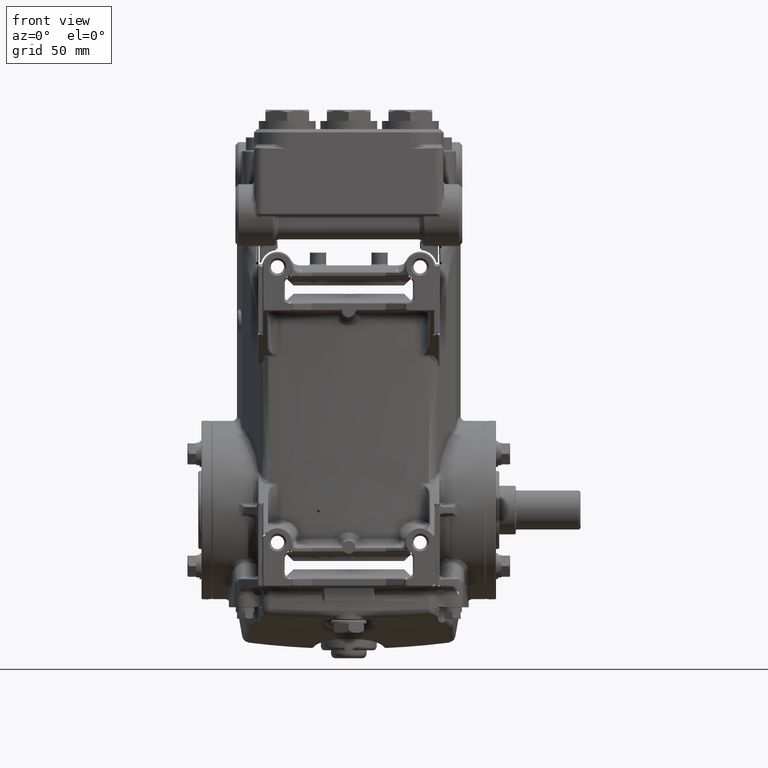
[diagram: clean part render]
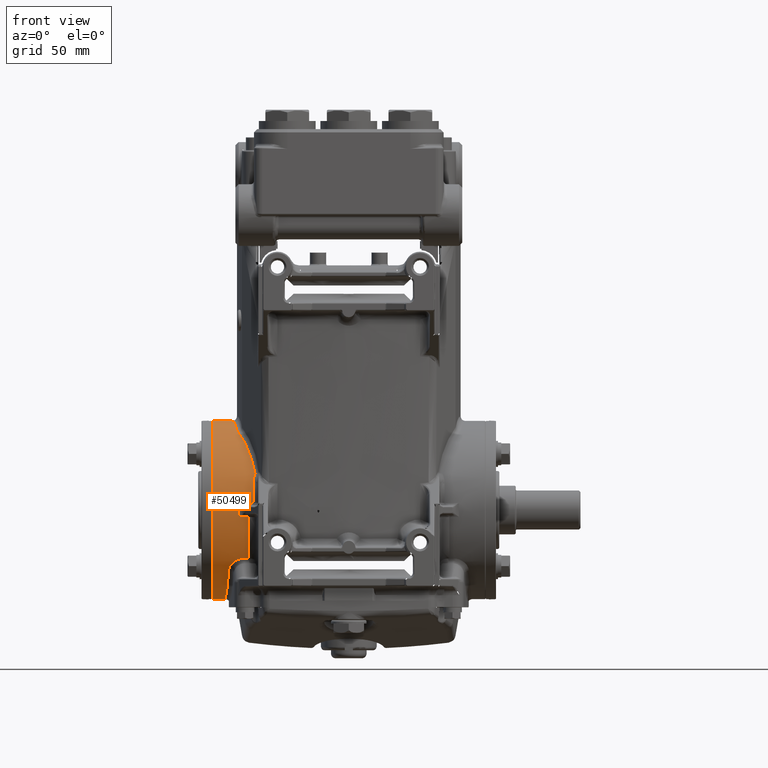
[diagram: same view with one face highlighted and labeled with its STEP entity id]
A machine part, front view. The second image highlights one B-rep face of the part: STEP entity #50499.
In plain terms, the highlighted cylindrical surface (partial cylindrical patch) has radius 55 mm, axis along (-1, -0, -0).
Its self-contained STEP definition (entity closure, byte-faithful):
#1895 = CARTESIAN_POINT ( 'NONE',  ( -2.940181541919657082, -1.309273501592580713, -1.772590252395337407 ) ) ;
#2230 = ORIENTED_EDGE ( 'NONE', *, *, #103115, .T. ) ;
#2510 = CARTESIAN_POINT ( 'NONE',  ( -2.964687734594000812, -0.9588978268965991925, -1.984134134183584752 ) ) ;
#3326 = B_SPLINE_CURVE_WITH_KNOTS ( 'NONE', 3,
 ( #4194, #119165, #42571, #33114, #14859, #23677, #100353, #14246 ),
 .UNSPECIFIED., .F., .F.,
 ( 4, 2, 2, 4 ),
 ( 0.000000000000000000, 0.003403388536728656991, 0.005105082805092990041, 0.006806777073457322656 ),
 .UNSPECIFIED. ) ;
#3419 = CARTESIAN_POINT ( 'NONE',  ( -2.920714650841377047, -1.587600093807529200, -1.472509870819574518 ) ) ;
#4194 = CARTESIAN_POINT ( 'NONE',  ( -2.326855772008549206, -2.067566859146158009, 0.6433713239485003843 ) ) ;
#4655 = CARTESIAN_POINT ( 'NONE',  ( -2.532464889193351887, -1.820616516430447085, -1.172226461746798343 ) ) ;
#5289 = CARTESIAN_POINT ( 'NONE',  ( -2.764593331846600499, -1.776188150977242364, -1.238591916241818414 ) ) ;
#8217 = EDGE_CURVE ( 'NONE', #79322, #58122, #20996, .T. ) ;
#11020 = CARTESIAN_POINT ( 'NONE',  ( -2.326187179854042775, -2.158380598365251757, 0.1736449542002639901 ) ) ;
#11124 = VERTEX_POINT ( 'NONE', #22232 ) ;
#11272 = CARTESIAN_POINT ( 'NONE',  ( -2.446093692784791163, -1.820616516430446863, -1.172226461746799675 ) ) ;
#11655 = CARTESIAN_POINT ( 'NONE',  ( -2.326855772008549206, -2.067566859146158009, 0.6433713239485003843 ) ) ;
#12083 = B_SPLINE_CURVE_WITH_KNOTS ( 'NONE', 3,
 ( #71238, #62452, #110156, #24084 ),
 .UNSPECIFIED., .F., .F.,
 ( 4, 4 ),
 ( 0.0002660209736205815679, 0.0005320419472383840004 ),
 .UNSPECIFIED. ) ;
#12133 = CARTESIAN_POINT ( 'NONE',  ( -2.996615589479275865, -0.4731062516763478998, -2.113551596670203203 ) ) ;
#13098 = CARTESIAN_POINT ( 'NONE',  ( -2.834916132250326903, -8.553836053367910872E-13, 2.165354330708661568 ) ) ;
#13981 = CARTESIAN_POINT ( 'NONE',  ( -2.995192722002653962, -0.1972203405201245763, -2.156859757434875569 ) ) ;
#14246 = CARTESIAN_POINT ( 'NONE',  ( -2.278432660045424551, -1.974119970560272774, 0.8897245187999839322 ) ) ;
#14859 = CARTESIAN_POINT ( 'NONE',  ( -2.305625944778945779, -2.008007654725290525, 0.8106383334093402171 ) ) ;
#14873 = CARTESIAN_POINT ( 'NONE',  ( -2.699836573358002312, -1.036775677710987109, 1.901014353345518382 ) ) ;
#15040 = CARTESIAN_POINT ( 'NONE',  ( -2.714262431508347007, -0.9853388122601135501, 1.928177067225047114 ) ) ;
#15889 = CARTESIAN_POINT ( 'NONE',  ( -2.833573044147181808, -0.02176847656630575764, 2.165244907844546596 ) ) ;
#16103 = CARTESIAN_POINT ( 'NONE',  ( -2.366389167053205789, -1.778475062528224626, 1.323821266639738203 ) ) ;
#16264 = CARTESIAN_POINT ( 'NONE',  ( -2.712053289720472993, -1.003180171440652746, 1.919059759503226381 ) ) ;
#16776 = CARTESIAN_POINT ( 'NONE',  ( -2.674210746901584557, -2.158770751971642810, 0.1687252735974759943 ) ) ;
#17435 = ORIENTED_EDGE ( 'NONE', *, *, #79223, .T. ) ;
#17516 = ORIENTED_EDGE ( 'NONE', *, *, #8217, .T. ) ;
#18652 = EDGE_CURVE ( 'NONE', #107492, #98398, #119952, .T. ) ;
#20079 = DIRECTION ( 'NONE',  ( -1.000000000000000000, -0.000000000000000000, -0.000000000000000000 ) ) ;
#20166 = CARTESIAN_POINT ( 'NONE',  ( 19685.03937007874265, 0.000000000000000000, 0.000000000000000000 ) ) ;
#20352 =( BOUNDED_CURVE ( )  B_SPLINE_CURVE ( 3, ( #29110, #38550, #20906, #115799 ),
 .UNSPECIFIED., .F., .T. ) 
 B_SPLINE_CURVE_WITH_KNOTS ( ( 4, 4 ),
 ( 3.063593188191957140, 3.219592118987629092 ),
 .UNSPECIFIED. ) 
 CURVE ( )  GEOMETRIC_REPRESENTATION_ITEM ( )  RATIONAL_B_SPLINE_CURVE ( ( 1.000000000000000000, 0.9979730557585420048, 0.9979730557585420048, 1.000000000000000000 ) ) 
 REPRESENTATION_ITEM ( '' )  );
#20906 = CARTESIAN_POINT ( 'NONE',  ( -2.667988787723269084, -2.167553314171200451, 0.05635598831180540363 ) ) ;
#20996 =( BOUNDED_CURVE ( )  B_SPLINE_CURVE ( 3, ( #88635, #2510, #1895, #31443 ),
 .UNSPECIFIED., .F., .T. ) 
 B_SPLINE_CURVE_WITH_KNOTS ( ( 4, 4 ),
 ( 1.834169742911779588, 2.393786604627855308 ),
 .UNSPECIFIED. ) 
 CURVE ( )  GEOMETRIC_REPRESENTATION_ITEM ( )  RATIONAL_B_SPLINE_CURVE ( ( 1.000000000000000000, 0.9740722412601059421, 0.9740722412601059421, 1.000000000000000000 ) ) 
 REPRESENTATION_ITEM ( '' )  );
#22167 = CARTESIAN_POINT ( 'NONE',  ( -2.995487386928062712, -0.5185418274592429322, -2.102870380195392297 ) ) ;
#22232 = CARTESIAN_POINT ( 'NONE',  ( -2.443477343751564668, -2.158513348630655138, -0.1719869218924234555 ) ) ;
#22289 = CARTESIAN_POINT ( 'NONE',  ( -2.655372862777617637, -1.809646276478333426, -1.189132284502953496 ) ) ;
#22922 = CARTESIAN_POINT ( 'NONE',  ( -2.326187179854042775, -2.158380598365251757, 0.1736449542002639901 ) ) ;
#23304 = VERTEX_POINT ( 'NONE', #44302 ) ;
#23677 = CARTESIAN_POINT ( 'NONE',  ( -2.293715712510576044, -1.991376897123604550, 0.8506746161902936088 ) ) ;
#23856 = ORIENTED_EDGE ( 'NONE', *, *, #30233, .T. ) ;
#24031 = CARTESIAN_POINT ( 'NONE',  ( -3.000905191768266533, -0.01046765692728695782, -2.165329029426523277 ) ) ;
#24084 = CARTESIAN_POINT ( 'NONE',  ( -3.000905191768266533, -0.01046765692728695782, -2.165329029426523277 ) ) ;
#24272 = CARTESIAN_POINT ( 'NONE',  ( -2.714262431508347007, -0.9853388122601135501, 1.928177067225047114 ) ) ;
#25688 = LINE ( 'NONE', #64669, #87694 ) ;
#28211 = ORIENTED_EDGE ( 'NONE', *, *, #99675, .F. ) ;
#29084 = CARTESIAN_POINT ( 'NONE',  ( -2.791879429211051811, -0.3584923408687981095, 2.161859625411682639 ) ) ;
#29110 = CARTESIAN_POINT ( 'NONE',  ( -2.674210746901584557, -2.158770751971642810, -0.1687252735974765216 ) ) ;
#29112 =( BOUNDED_CURVE ( )  B_SPLINE_CURVE ( 3, ( #16776, #101050, #84056, #33832 ),
 .UNSPECIFIED., .F., .T. ) 
 B_SPLINE_CURVE_WITH_KNOTS ( ( 4, 4 ),
 ( 1.658302215529230184, 1.660581347333502267 ),
 .UNSPECIFIED. ) 
 CURVE ( )  GEOMETRIC_REPRESENTATION_ITEM ( )  RATIONAL_B_SPLINE_CURVE ( ( 1.000000000000000000, 0.9999995671298984590, 0.9999995671298984590, 1.000000000000000000 ) ) 
 REPRESENTATION_ITEM ( '' )  );
#30214 = LINE ( 'NONE', #115661, #90484 ) ;
#30233 = EDGE_CURVE ( 'NONE', #90488, #79322, #96168, .T. ) ;
#30452 = ORIENTED_EDGE ( 'NONE', *, *, #104515, .T. ) ;
#30512 = EDGE_CURVE ( 'NONE', #71953, #78714, #30214, .T. ) ;
#31443 = CARTESIAN_POINT ( 'NONE',  ( -2.920714650841377047, -1.587600093807529200, -1.472509870819574518 ) ) ;
#31737 = CARTESIAN_POINT ( 'NONE',  ( -2.863461055552833034, -1.710153006619635985, -1.328365225891262824 ) ) ;
#32112 = DIRECTION ( 'NONE',  ( -1.000000000000000000, -0.000000000000000000, -0.000000000000000000 ) ) ;
#32235 = CARTESIAN_POINT ( 'NONE',  ( -2.992327056910538907, -0.5637264376050655779, -2.090686939994570004 ) ) ;
#32359 = CARTESIAN_POINT ( 'NONE',  ( -2.723179048461198182, -1.791718851132846568, -1.215951984362869442 ) ) ;
#33114 = CARTESIAN_POINT ( 'NONE',  ( -2.310552848791296299, -2.016081156303713762, 0.7903537873505217526 ) ) ;
#33134 = CARTESIAN_POINT ( 'NONE',  ( -2.511905838885127640, -1.454796953362464063, 1.673033806750391150 ) ) ;
#33473 = CARTESIAN_POINT ( 'NONE',  ( -2.996620088869631715, -0.3358538298913016917, -2.139656249712680758 ) ) ;
#33832 = CARTESIAN_POINT ( 'NONE',  ( -2.326187179854042775, -2.158380598365251757, 0.1736449542002639901 ) ) ;
#34444 = CARTESIAN_POINT ( 'NONE',  ( -2.446093692784791163, -1.820616516430446863, -1.172226461746799675 ) ) ;
#37491 = ORIENTED_EDGE ( 'NONE', *, *, #122128, .T. ) ;
#38550 = CARTESIAN_POINT ( 'NONE',  ( -2.667988787723269084, -2.167553314171200451, -0.05635598831180592405 ) ) ;
#40186 = CARTESIAN_POINT ( 'NONE',  ( -2.834471511779841357, -0.01451231771115563292, 2.165317858263883899 ) ) ;
#40227 = CARTESIAN_POINT ( 'NONE',  ( -2.443698221112212465, -2.129987429680291200, -0.5300000554423744958 ) ) ;
#41460 = ORIENTED_EDGE ( 'NONE', *, *, #65007, .T. ) ;
#41822 = CARTESIAN_POINT ( 'NONE',  ( -2.818805374646163209, -1.746130270266147644, -1.280578324590665895 ) ) ;
#42571 = CARTESIAN_POINT ( 'NONE',  ( -2.322550062479203259, -2.039519848676857094, 0.7287317793437902980 ) ) ;
#42922 = CARTESIAN_POINT ( 'NONE',  ( -2.995616580941063756, -0.2435827851895654428, -2.152113865190802056 ) ) ;
#43378 = CARTESIAN_POINT ( 'NONE',  ( -2.707236426691661535, -1.020315910558583949, 1.909991185221791676 ) ) ;
#44302 = CARTESIAN_POINT ( 'NONE',  ( -2.674210746901584557, -2.158770751971642810, -0.1687252735974765216 ) ) ;
#45307 =( BOUNDED_CURVE ( )  B_SPLINE_CURVE ( 3, ( #85681, #95714, #29084, #105125 ),
 .UNSPECIFIED., .F., .T. ) 
 B_SPLINE_CURVE_WITH_KNOTS ( ( 4, 4 ),
 ( 4.239963560357498551, 4.702335732773507360 ),
 .UNSPECIFIED. ) 
 CURVE ( )  GEOMETRIC_REPRESENTATION_ITEM ( )  RATIONAL_B_SPLINE_CURVE ( ( 1.000000000000000000, 0.9822635394635153006, 0.9822635394635153006, 1.000000000000000000 ) ) 
 REPRESENTATION_ITEM ( '' )  );
#46196 = ORIENTED_EDGE ( 'NONE', *, *, #116280, .T. ) ;
#46990 = CARTESIAN_POINT ( 'NONE',  ( -3.307086614166640182, 2.651794250122221246E-16, 2.165354330708661568 ) ) ;
#49089 = ORIENTED_EDGE ( 'NONE', *, *, #89967, .T. ) ;
#49399 = CARTESIAN_POINT ( 'NONE',  ( -2.326505496007025720, -2.115144254841320404, 0.4904744774119016992 ) ) ;
#49614 = CARTESIAN_POINT ( 'NONE',  ( -2.833573044147181808, -0.02176847656630575764, 2.165244907844546596 ) ) ;
#50366 = CYLINDRICAL_SURFACE ( 'NONE', #109372, 2.165354330708661568 ) ;
#50499 = ADVANCED_FACE ( 'NONE', ( #88044 ), #50366, .T. ) ;
#51877 = ORIENTED_EDGE ( 'NONE', *, *, #94184, .T. ) ;
#52287 =( BOUNDED_CURVE ( )  B_SPLINE_CURVE ( 3, ( #11272, #116822, #40227, #60936 ),
 .UNSPECIFIED., .F., .T. ) 
 B_SPLINE_CURVE_WITH_KNOTS ( ( 4, 4 ),
 ( 2.569544220419070601, 3.062082216201972074 ),
 .UNSPECIFIED. ) 
 CURVE ( )  GEOMETRIC_REPRESENTATION_ITEM ( )  RATIONAL_B_SPLINE_CURVE ( ( 1.000000000000000000, 0.9798858269717181102, 0.9798858269717181102, 1.000000000000000000 ) ) 
 REPRESENTATION_ITEM ( '' )  );
#52475 = CARTESIAN_POINT ( 'NONE',  ( -2.919517072216844866, -1.604722395266136026, -1.454049303633869306 ) ) ;
#53084 = CARTESIAN_POINT ( 'NONE',  ( -2.701190563339463058, -1.798456944965630688, -1.205963634147353858 ) ) ;
#53141 = VERTEX_POINT ( 'NONE', #24272 ) ;
#53714 = CARTESIAN_POINT ( 'NONE',  ( -2.842331129812760704, -1.728738325294228773, -1.303966144364913538 ) ) ;
#54901 = CARTESIAN_POINT ( 'NONE',  ( -2.699836573358002312, -1.036775677710987109, 1.901014353345518382 ) ) ;
#55255 = ORIENTED_EDGE ( 'NONE', *, *, #86116, .T. ) ;
#55726 = DIRECTION ( 'NONE',  ( 1.000000000000000000, -0.000000000000000000, -0.000000000000000000 ) ) ;
#58122 = VERTEX_POINT ( 'NONE', #112794 ) ;
#58536 = DIRECTION ( 'NONE',  ( 0.000000000000000000, 0.000000000000000000, 1.000000000000000000 ) ) ;
#59443 = CARTESIAN_POINT ( 'NONE',  ( -2.326281718821082478, -2.145539530712824661, 0.3332574889320795153 ) ) ;
#59697 = LINE ( 'NONE', #96746, #66176 ) ;
#60936 = CARTESIAN_POINT ( 'NONE',  ( -2.443477343751564668, -2.158513348630655138, -0.1719869218924234555 ) ) ;
#61137 =( BOUNDED_CURVE ( )  B_SPLINE_CURVE ( 3, ( #11020, #59443, #49399, #11655 ),
 .UNSPECIFIED., .F., .F. ) 
 B_SPLINE_CURVE_WITH_KNOTS ( ( 4, 4 ),
 ( 3.221871250791901176, 3.443268276821734641 ),
 .UNSPECIFIED. ) 
 CURVE ( )  GEOMETRIC_REPRESENTATION_ITEM ( )  RATIONAL_B_SPLINE_CURVE ( ( 1.000000000000000000, 0.9959194492702052592, 0.9959194492702052592, 1.000000000000000000 ) ) 
 REPRESENTATION_ITEM ( '' )  );
#61280 = CARTESIAN_POINT ( 'NONE',  ( -2.582927355988585472, -1.819201374929799941, -1.174432289810004804 ) ) ;
#62452 = CARTESIAN_POINT ( 'NONE',  ( -3.001247000493424633, -0.003491088892676858478, -2.165354330708661568 ) ) ;
#62516 = CARTESIAN_POINT ( 'NONE',  ( -2.895681110343640174, -1.667722611924739473, -1.381158956029594709 ) ) ;
#62619 = VERTEX_POINT ( 'NONE', #77680 ) ;
#64669 = CARTESIAN_POINT ( 'NONE',  ( 19685.03937007874265, 2.651794250122221246E-16, -2.165354330708661568 ) ) ;
#64767 = ORIENTED_EDGE ( 'NONE', *, *, #18652, .T. ) ;
#65007 = EDGE_CURVE ( 'NONE', #70559, #62619, #122346, .T. ) ;
#65480 = CARTESIAN_POINT ( 'NONE',  ( -2.278432660045424551, -1.974119970560272774, 0.8897245187999839322 ) ) ;
#66176 = VECTOR ( 'NONE', #20079, 39.37007874015748143 ) ;
#69958 = CARTESIAN_POINT ( 'NONE',  ( -2.997849561794700524, -0.05720719989911275671, -2.165103080624237286 ) ) ;
#70086 = CARTESIAN_POINT ( 'NONE',  ( -2.834814056127188397, -1.734692835715669013, -1.296029525847214536 ) ) ;
#70559 = VERTEX_POINT ( 'NONE', #15889 ) ;
#70699 = CARTESIAN_POINT ( 'NONE',  ( -2.631702669547606899, -1.813707328637965688, -1.182899223069887373 ) ) ;
#70938 = CARTESIAN_POINT ( 'NONE',  ( -2.992327056910538907, -0.5637264376050655779, -2.090686939994570004 ) ) ;
#71238 = CARTESIAN_POINT ( 'NONE',  ( -3.001247000493425965, -5.474055705097304527E-14, -2.165354330708661568 ) ) ;
#71953 = VERTEX_POINT ( 'NONE', #97099 ) ;
#72551 = CARTESIAN_POINT ( 'NONE',  ( -2.907208096817309961, -1.644827329761225254, -1.408349340068536515 ) ) ;
#73094 = CARTESIAN_POINT ( 'NONE',  ( -3.307086614166640182, 0.000000000000000000, -2.165354330708661568 ) ) ;
#73211 = B_SPLINE_CURVE_WITH_KNOTS ( 'NONE', 3,
 ( #3419, #52475, #109603, #72551, #110842, #62516, #82583, #101442, #31737, #53714, #70086, #41822, #91390, #100827, #5289, #80122, #32359, #53084, #108380, #22289, #70699, #61280, #120275, #4655 ),
 .UNSPECIFIED., .F., .F.,
 ( 4, 2, 2, 2, 2, 2, 2, 2, 2, 2, 2, 4 ),
 ( 9.813077866773594792E-18, 0.001890309514353979503, 0.002835464271530962425, 0.003780619028707945996, 0.005670928543061879747, 0.006616083300238845971, 0.007561238057415810461, 0.009451547571769722961, 0.01039670232894667617, 0.01134185708612362765, 0.01323216660047752888, 0.01512247611483142837 ),
 .UNSPECIFIED. ) ;
#73333 = CARTESIAN_POINT ( 'NONE',  ( -2.278432660045424551, -1.974119970560272774, 0.8897245187999839322 ) ) ;
#75639 = CARTESIAN_POINT ( 'NONE',  ( -2.597294478023087549, -2.158685772242758816, -0.1698125544138842091 ) ) ;
#75816 = DIRECTION ( 'NONE',  ( 0.000000000000000000, 0.000000000000000000, -1.000000000000000000 ) ) ;
#76873 = CARTESIAN_POINT ( 'NONE',  ( -2.520383329007171547, -2.158599971112772575, -0.1708997707190461901 ) ) ;
#77680 = CARTESIAN_POINT ( 'NONE',  ( -2.834916132250326903, -8.553836053367910872E-13, 2.165354330708661568 ) ) ;
#78714 = VERTEX_POINT ( 'NONE', #34444 ) ;
#79223 = EDGE_CURVE ( 'NONE', #88779, #90488, #12083, .T. ) ;
#79322 = VERTEX_POINT ( 'NONE', #70938 ) ;
#79566 = VERTEX_POINT ( 'NONE', #46990 ) ;
#80122 = CARTESIAN_POINT ( 'NONE',  ( -2.733799821002130592, -1.788055399720631655, -1.221337787564105160 ) ) ;
#82066 = VERTEX_POINT ( 'NONE', #83842 ) ;
#82583 = CARTESIAN_POINT ( 'NONE',  ( -2.891058420429804432, -1.675185755806329446, -1.372094427274260786 ) ) ;
#83842 = CARTESIAN_POINT ( 'NONE',  ( -2.674210746901584557, -2.158770751971642810, 0.1687252735974759943 ) ) ;
#83873 = EDGE_LOOP ( 'NONE', ( #28211, #17435, #23856, #17516, #98868, #87134, #55255, #100548, #37491, #51877, #110431, #30452, #64767, #46196, #49089, #41460, #2230, #115518 ) ) ;
#84056 = CARTESIAN_POINT ( 'NONE',  ( -2.442183260828809210, -2.158512518306397343, 0.1720052092228487040 ) ) ;
#85225 = CARTESIAN_POINT ( 'NONE',  ( -3.307086614166640182, 0.000000000000000000, 0.000000000000000000 ) ) ;
#85681 = CARTESIAN_POINT ( 'NONE',  ( -2.714262431508347007, -0.9853388122601135501, 1.928177067225047114 ) ) ;
#86116 = EDGE_CURVE ( 'NONE', #78714, #11124, #52287, .T. ) ;
#87134 = ORIENTED_EDGE ( 'NONE', *, *, #30512, .T. ) ;
#87327 = CARTESIAN_POINT ( 'NONE',  ( -2.326855772008549206, -2.067566859146158009, 0.6433713239485003843 ) ) ;
#87694 = VECTOR ( 'NONE', #102969, 39.37007874015748143 ) ;
#88044 = FACE_OUTER_BOUND ( 'NONE', #83873, .T. ) ;
#88635 = CARTESIAN_POINT ( 'NONE',  ( -2.992327056910538907, -0.5637264376050655779, -2.090686939994570004 ) ) ;
#88779 = VERTEX_POINT ( 'NONE', #115392 ) ;
#89967 = EDGE_CURVE ( 'NONE', #53141, #70559, #45307, .T. ) ;
#90484 = VECTOR ( 'NONE', #106859, 39.37007874015748143 ) ;
#90488 = VERTEX_POINT ( 'NONE', #111776 ) ;
#90786 = EDGE_CURVE ( 'NONE', #79566, #101286, #96095, .T. ) ;
#91390 = CARTESIAN_POINT ( 'NONE',  ( -2.810273067879314191, -1.751632638508452633, -1.273035907037324721 ) ) ;
#94184 = EDGE_CURVE ( 'NONE', #82066, #99983, #29112, .T. ) ;
#95055 = B_SPLINE_CURVE_WITH_KNOTS ( 'NONE', 3,
 ( #101135, #43378, #16264, #15040 ),
 .UNSPECIFIED., .F., .F.,
 ( 4, 4 ),
 ( 0.000000000000000000, 0.001522235697223471920 ),
 .UNSPECIFIED. ) ;
#95714 = CARTESIAN_POINT ( 'NONE',  ( -2.751391105441369778, -0.6854820936121018837, 2.081410122437166610 ) ) ;
#96095 = CIRCLE ( 'NONE', #112125, 2.165354330708661568 ) ;
#96168 = B_SPLINE_CURVE_WITH_KNOTS ( 'NONE', 3,
 ( #24031, #69958, #108259, #13981, #42922, #33473, #100704, #12133, #22167, #32235 ),
 .UNSPECIFIED., .F., .F.,
 ( 4, 2, 2, 2, 4 ),
 ( 3.794707603699265519E-18, 0.003568104958381786585, 0.007136209916763568833, 0.01070431487514535152, 0.01427241983352713420 ),
 .UNSPECIFIED. ) ;
#96746 = CARTESIAN_POINT ( 'NONE',  ( 19685.03937007874265, 0.000000000000000000, 2.165354330708661568 ) ) ;
#97099 = CARTESIAN_POINT ( 'NONE',  ( -2.532464889193351887, -1.820616516430447085, -1.172226461746798343 ) ) ;
#98398 = VERTEX_POINT ( 'NONE', #54901 ) ;
#98868 = ORIENTED_EDGE ( 'NONE', *, *, #120809, .T. ) ;
#99675 = EDGE_CURVE ( 'NONE', #88779, #101286, #25688, .T. ) ;
#99983 = VERTEX_POINT ( 'NONE', #22922 ) ;
#100353 = CARTESIAN_POINT ( 'NONE',  ( -2.286715638794721617, -1.982784822781663570, 0.8704989524018492686 ) ) ;
#100548 = ORIENTED_EDGE ( 'NONE', *, *, #119139, .T. ) ;
#100704 = CARTESIAN_POINT ( 'NONE',  ( -2.997196904585581745, -0.3817623974804330023, -2.131944499519720981 ) ) ;
#100827 = CARTESIAN_POINT ( 'NONE',  ( -2.783706969288179511, -1.767116242986033203, -1.251547575922239197 ) ) ;
#101050 = CARTESIAN_POINT ( 'NONE',  ( -2.558191166727681765, -2.158642569564821923, 0.1703653149787250354 ) ) ;
#101135 = CARTESIAN_POINT ( 'NONE',  ( -2.699836573358002312, -1.036775677710987109, 1.901014353345518382 ) ) ;
#101286 = VERTEX_POINT ( 'NONE', #73094 ) ;
#101442 = CARTESIAN_POINT ( 'NONE',  ( -2.875666788662847306, -1.696807002933615083, -1.345410568374375559 ) ) ;
#102538 = VERTEX_POINT ( 'NONE', #87327 ) ;
#102969 = DIRECTION ( 'NONE',  ( -1.000000000000000000, -0.000000000000000000, -0.000000000000000000 ) ) ;
#103115 = EDGE_CURVE ( 'NONE', #62619, #79566, #59697, .T. ) ;
#104515 = EDGE_CURVE ( 'NONE', #102538, #107492, #3326, .T. ) ;
#105125 = CARTESIAN_POINT ( 'NONE',  ( -2.833573044147181808, -0.02176847656630575764, 2.165244907844546596 ) ) ;
#106859 = DIRECTION ( 'NONE',  ( 1.000000000000000000, 0.000000000000000000, 0.000000000000000000 ) ) ;
#107492 = VERTEX_POINT ( 'NONE', #65480 ) ;
#107712 =( BOUNDED_CURVE ( )  B_SPLINE_CURVE ( 3, ( #115782, #76873, #75639, #123984 ),
 .UNSPECIFIED., .F., .T. ) 
 B_SPLINE_CURVE_WITH_KNOTS ( ( 4, 4 ),
 ( 4.623372119660371204, 4.624883091650356270 ),
 .UNSPECIFIED. ) 
 CURVE ( )  GEOMETRIC_REPRESENTATION_ITEM ( )  RATIONAL_B_SPLINE_CURVE ( ( 1.000000000000000000, 0.9999998097469795511, 0.9999998097469795511, 1.000000000000000000 ) ) 
 REPRESENTATION_ITEM ( '' )  );
#108259 = CARTESIAN_POINT ( 'NONE',  ( -2.996285488333642721, -0.1040549884975186523, -2.163356751746154938 ) ) ;
#108380 = CARTESIAN_POINT ( 'NONE',  ( -2.689820521069385961, -1.801525883882415080, -1.201369148865314651 ) ) ;
#109372 = AXIS2_PLACEMENT_3D ( 'NONE', #20166, #32112, #58536 ) ;
#109603 = CARTESIAN_POINT ( 'NONE',  ( -2.915927201418830883, -1.621144520552956880, -1.435698974203300393 ) ) ;
#110156 = CARTESIAN_POINT ( 'NONE',  ( -3.001132935298737703, -0.006984045161084906188, -2.165345869940061618 ) ) ;
#110431 = ORIENTED_EDGE ( 'NONE', *, *, #117001, .T. ) ;
#110842 = CARTESIAN_POINT ( 'NONE',  ( -2.903741629218083542, -1.652562419514970182, -1.399262742215554134 ) ) ;
#111776 = CARTESIAN_POINT ( 'NONE',  ( -3.000905191768266533, -0.01046765692728695782, -2.165329029426523277 ) ) ;
#112125 = AXIS2_PLACEMENT_3D ( 'NONE', #85225, #55726, #75816 ) ;
#112794 = CARTESIAN_POINT ( 'NONE',  ( -2.920714650841377047, -1.587600093807529200, -1.472509870819574518 ) ) ;
#115392 = CARTESIAN_POINT ( 'NONE',  ( -3.001247000493425965, -5.474055705097304527E-14, -2.165354330708661568 ) ) ;
#115518 = ORIENTED_EDGE ( 'NONE', *, *, #90786, .T. ) ;
#115661 = CARTESIAN_POINT ( 'NONE',  ( 19685.03937007874265, -1.820616516430446641, -1.172226461746799009 ) ) ;
#115782 = CARTESIAN_POINT ( 'NONE',  ( -2.443477343751564668, -2.158513348630655138, -0.1719869218924234555 ) ) ;
#115799 = CARTESIAN_POINT ( 'NONE',  ( -2.674210746901584557, -2.158770751971642810, 0.1687252735974759943 ) ) ;
#116280 = EDGE_CURVE ( 'NONE', #98398, #53141, #95055, .T. ) ;
#116822 = CARTESIAN_POINT ( 'NONE',  ( -2.444588239439249744, -2.015043143009513038, -0.8702572270169992574 ) ) ;
#117001 = EDGE_CURVE ( 'NONE', #99983, #102538, #61137, .T. ) ;
#117405 = CARTESIAN_POINT ( 'NONE',  ( -2.834916132250292264, -0.007256158856005508195, 2.165354330708658903 ) ) ;
#119139 = EDGE_CURVE ( 'NONE', #11124, #23304, #107712, .T. ) ;
#119165 = CARTESIAN_POINT ( 'NONE',  ( -2.326954909972011709, -2.054101117604678173, 0.6866454331738266470 ) ) ;
#119952 =( BOUNDED_CURVE ( )  B_SPLINE_CURVE ( 3, ( #73333, #16103, #33134, #14873 ),
 .UNSPECIFIED., .F., .T. ) 
 B_SPLINE_CURVE_WITH_KNOTS ( ( 4, 4 ),
 ( 3.565023768268702042, 4.213099522305698841 ),
 .UNSPECIFIED. ) 
 CURVE ( )  GEOMETRIC_REPRESENTATION_ITEM ( )  RATIONAL_B_SPLINE_CURVE ( ( 1.000000000000000000, 0.9653050013850396072, 0.9653050013850396072, 1.000000000000000000 ) ) 
 REPRESENTATION_ITEM ( '' )  );
#120275 = CARTESIAN_POINT ( 'NONE',  ( -2.557684116638908822, -1.820616516430408449, -1.172226461746761483 ) ) ;
#120809 = EDGE_CURVE ( 'NONE', #58122, #71953, #73211, .T. ) ;
#122128 = EDGE_CURVE ( 'NONE', #23304, #82066, #20352, .T. ) ;
#122346 = B_SPLINE_CURVE_WITH_KNOTS ( 'NONE', 3,
 ( #49614, #40186, #117405, #13098 ),
 .UNSPECIFIED., .F., .F.,
 ( 4, 4 ),
 ( 0.000000000000000000, 0.0005529193047624394834 ),
 .UNSPECIFIED. ) ;
#123984 = CARTESIAN_POINT ( 'NONE',  ( -2.674210746901584557, -2.158770751971642810, -0.1687252735974765216 ) ) ;